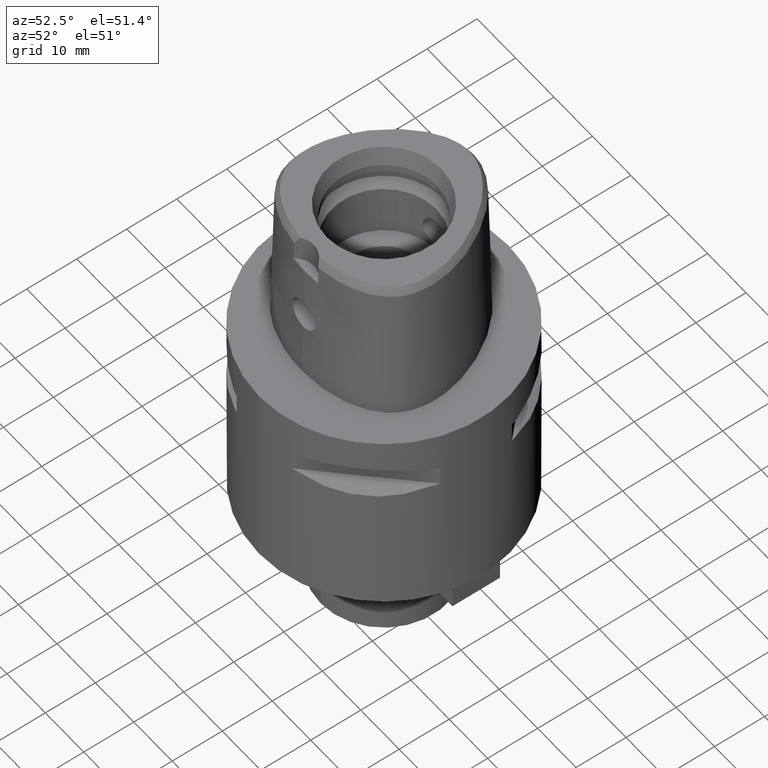
[diagram: clean part render]
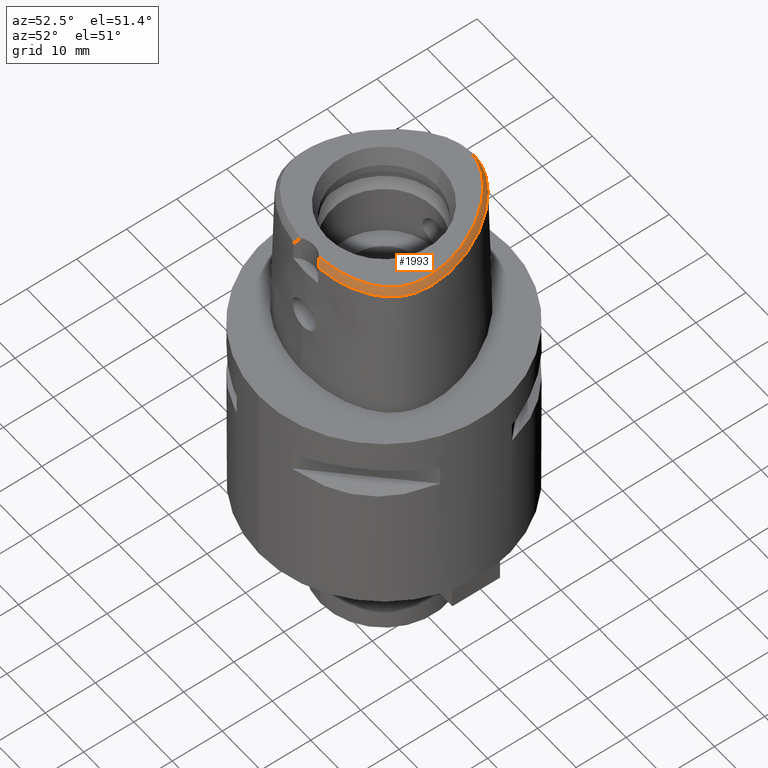
[diagram: same view with one face highlighted and labeled with its STEP entity id]
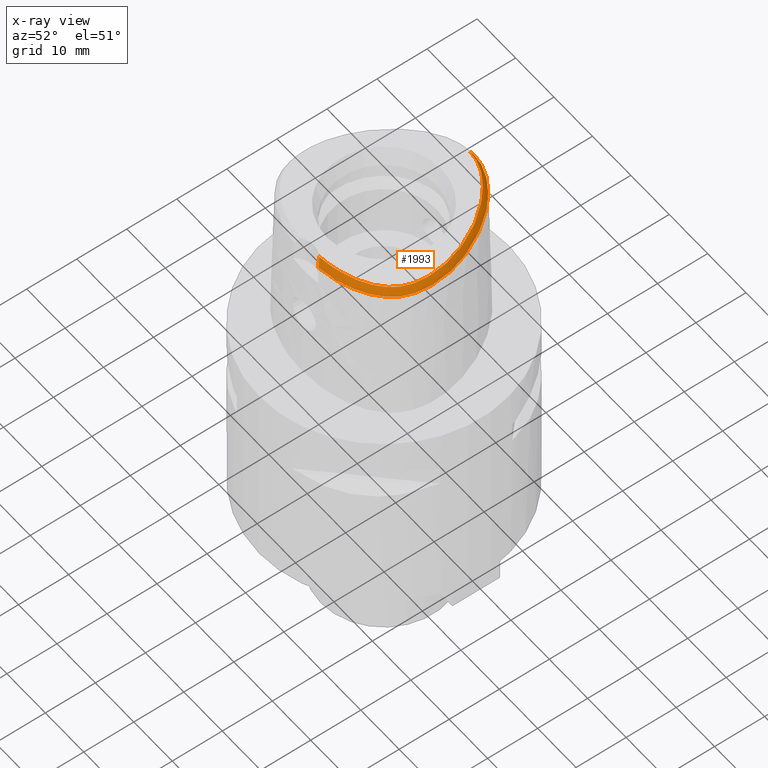
[diagram: x-ray of the same camera — body ghosted, the highlighted face saturated]
A machine part, auxiliary view. The second image highlights one B-rep face of the part: STEP entity #1993.
The next image is the same camera in x-ray: the body ghosted, the highlighted face saturated — about 0% of this face is hidden behind the body in this view.
In plain terms, the highlighted face is a freeform B-spline surface patch.
Its self-contained STEP definition (entity closure, byte-faithful):
#65=CARTESIAN_POINT('',(-6.301949014215E-11,1.715328888648E1,3.E1));
#70=CARTESIAN_POINT('',(-6.301949014215E-11,1.715328888648E1,3.E1));
#71=CARTESIAN_POINT('',(2.777616722458E-1,1.715328888649E1,3.E1));
#72=CARTESIAN_POINT('',(8.447675355650E-1,1.712428776359E1,3.E1));
#73=CARTESIAN_POINT('',(1.721830090813E0,1.699032819272E1,3.E1));
#74=CARTESIAN_POINT('',(2.649149900219E0,1.675524812591E1,3.E1));
#75=CARTESIAN_POINT('',(3.637697326575E0,1.640075765485E1,3.E1));
#76=CARTESIAN_POINT('',(4.639899341694E0,1.593367804020E1,3.E1));
#77=CARTESIAN_POINT('',(5.637738225532E0,1.536477833724E1,3.E1));
#78=CARTESIAN_POINT('',(6.658759245453E0,1.467349105190E1,3.E1));
#79=CARTESIAN_POINT('',(7.670769641147E0,1.387544615122E1,3.E1));
#80=CARTESIAN_POINT('',(8.707242898870E0,1.293802001656E1,3.E1));
#81=CARTESIAN_POINT('',(9.818019929471E0,1.178756300483E1,3.E1));
#82=CARTESIAN_POINT('',(1.101276470754E1,1.035200337220E1,3.E1));
#83=CARTESIAN_POINT('',(1.217253524367E1,8.714612523960E0,3.E1));
#84=CARTESIAN_POINT('',(1.321302822921E1,6.979993652523E0,3.E1));
#85=CARTESIAN_POINT('',(1.411946321340E1,5.172878816528E0,3.E1));
#86=CARTESIAN_POINT('',(1.485277441730E1,3.377028022542E0,3.E1));
#87=CARTESIAN_POINT('',(1.537798404075E1,1.749772317866E0,3.E1));
#88=CARTESIAN_POINT('',(1.573481367414E1,3.059587796540E-1,3.E1));
#89=CARTESIAN_POINT('',(1.596685641760E1,-1.010771755968E0,3.E1));
#90=CARTESIAN_POINT('',(1.609708199297E1,-2.250297357802E0,3.E1));
#91=CARTESIAN_POINT('',(1.613321208788E1,-3.430793850172E0,3.E1));
#92=CARTESIAN_POINT('',(1.607758281214E1,-4.559656771510E0,3.E1));
#93=CARTESIAN_POINT('',(1.592913025776E1,-5.633557178302E0,3.E1));
#94=CARTESIAN_POINT('',(1.569937609213E1,-6.605438150750E0,3.E1));
#95=CARTESIAN_POINT('',(1.540384993196E1,-7.471850498516E0,3.E1));
#96=CARTESIAN_POINT('',(1.504868552241E1,-8.252295695937E0,3.E1));
#97=CARTESIAN_POINT('',(1.463197838235E1,-8.966562556625E0,3.E1));
#98=CARTESIAN_POINT('',(1.412833422053E1,-9.659838555082E0,3.E1));
#99=CARTESIAN_POINT('',(1.351554946820E1,-1.034958936348E1,3.E1));
#100=CARTESIAN_POINT('',(1.278065377405E1,-1.103153151095E1,3.E1));
#101=CARTESIAN_POINT('',(1.191352938825E1,-1.169592966625E1,3.E1));
#102=CARTESIAN_POINT('',(1.095443669820E1,-1.230496705459E1,3.E1));
#103=CARTESIAN_POINT('',(9.910787999390E0,-1.285738391828E1,3.E1));
#104=CARTESIAN_POINT('',(8.760991237663E0,-1.336155250820E1,3.E1));
#105=CARTESIAN_POINT('',(7.498176769351E0,-1.381314477948E1,3.E1));
#106=CARTESIAN_POINT('',(6.060818885981E0,-1.422125337688E1,3.E1));
#107=CARTESIAN_POINT('',(4.351036718884E0,-1.457721747280E1,3.E1));
#108=CARTESIAN_POINT('',(3.079869816069E0,-1.474394533741E1,3.E1));
#109=CARTESIAN_POINT('',(2.406543924165E0,-1.480491841402E1,3.E1));
#130=CARTESIAN_POINT('',(3.168920890823E0,-1.555911073834E1,2.852071374673E1));
#131=CARTESIAN_POINT('',(3.092741976482E0,-1.546021032655E1,2.871180519878E1));
#132=CARTESIAN_POINT('',(2.933452387541E0,-1.527271420462E1,2.907630636305E1));
#133=CARTESIAN_POINT('',(2.681001770697E0,-1.502452457223E1,2.956388222784E1));
#134=CARTESIAN_POINT('',(2.499742243492E0,-1.487511563531E1,2.986020725569E1));
#135=CARTESIAN_POINT('',(2.406543924165E0,-1.480491841402E1,3.E1));
#140=CARTESIAN_POINT('',(-2.785048470627E-11,1.798202997910E1,
2.852071728569E1));
#141=CARTESIAN_POINT('',(2.935941968210E-1,1.798202997910E1,2.852071728569E1));
#142=CARTESIAN_POINT('',(8.796171229139E-1,1.795408702273E1,2.852060415113E1));
#143=CARTESIAN_POINT('',(1.829184189504E0,1.781518785758E1,2.852076558051E1));
#144=CARTESIAN_POINT('',(2.812452625656E0,1.757185041811E1,2.852071600259E1));
#145=CARTESIAN_POINT('',(3.840953727022E0,1.721318191179E1,2.852071676299E1));
#146=CARTESIAN_POINT('',(4.904083311850E0,1.673119820282E1,2.852072341774E1));
#147=CARTESIAN_POINT('',(5.980834384062E0,1.612813892605E1,2.852071577405E1));
#148=CARTESIAN_POINT('',(7.043175361553E0,1.541930512876E1,2.852072705112E1));
#149=CARTESIAN_POINT('',(8.109577711695E0,1.459040880097E1,2.852071914480E1));
#150=CARTESIAN_POINT('',(9.194007734920E0,1.362110970156E1,2.852071945283E1));
#151=CARTESIAN_POINT('',(1.034535899737E1,1.244017642194E1,2.852070832452E1));
#152=CARTESIAN_POINT('',(1.154012093893E1,1.102267813915E1,2.852071916918E1));
#153=CARTESIAN_POINT('',(1.271386959309E1,9.399003807796E0,2.852072757774E1));
#154=CARTESIAN_POINT('',(1.380064103219E1,7.630000430345E0,2.852068644894E1));
#155=CARTESIAN_POINT('',(1.474540598175E1,5.792550765778E0,2.852072726582E1));
#156=CARTESIAN_POINT('',(1.549794552729E1,4.015260998252E0,2.852070690748E1));
#157=CARTESIAN_POINT('',(1.606738788435E1,2.346436021666E0,2.852071984976E1));
#158=CARTESIAN_POINT('',(1.647553637416E1,8.031897834314E-1,2.852071502969E1));
#159=CARTESIAN_POINT('',(1.674716459447E1,-6.151536505890E-1,2.852071639985E1));
#160=CARTESIAN_POINT('',(1.690602915093E1,-1.942185861338E0,2.852072271876E1));
#161=CARTESIAN_POINT('',(1.696371599189E1,-3.217117921967E0,2.852071503295E1));
#162=CARTESIAN_POINT('',(1.692056262151E1,-4.436960410531E0,2.852071640093E1));
#163=CARTESIAN_POINT('',(1.678163740201E1,-5.574771102343E0,2.852072540388E1));
#164=CARTESIAN_POINT('',(1.655445846377E1,-6.625961530650E0,2.852071643925E1));
#165=CARTESIAN_POINT('',(1.625353024472E1,-7.573331601863E0,2.852071023680E1));
#166=CARTESIAN_POINT('',(1.588496980888E1,-8.435689500867E0,2.852072634144E1));
#167=CARTESIAN_POINT('',(1.545057542011E1,-9.225195743306E0,2.852073082699E1));
#168=CARTESIAN_POINT('',(1.493430223208E1,-9.975355792046E0,2.852069064864E1));
#169=CARTESIAN_POINT('',(1.431825928459E1,-1.070874242098E1,2.852072451793E1));
#170=CARTESIAN_POINT('',(1.357970418458E1,-1.143543197761E1,2.852072131217E1));
#171=CARTESIAN_POINT('',(1.271133720346E1,-1.214363567625E1,2.852072095479E1));
#172=CARTESIAN_POINT('',(1.172202467094E1,-1.281312288210E1,2.852071551875E1));
#173=CARTESIAN_POINT('',(1.063838208886E1,-1.342201063082E1,2.852072278178E1));
#174=CARTESIAN_POINT('',(9.470951823126E0,-1.396669023563E1,2.852070930739E1));
#175=CARTESIAN_POINT('',(8.179526351006E0,-1.446148756322E1,2.852072603061E1));
#176=CARTESIAN_POINT('',(6.725527713203E0,-1.490560760398E1,2.852072127528E1));
#177=CARTESIAN_POINT('',(5.083799249192E0,-1.528542001296E1,2.852070436786E1));
#178=CARTESIAN_POINT('',(3.829619308137E0,-1.548210353575E1,2.852069801596E1));
#179=CARTESIAN_POINT('',(3.168920890823E0,-1.555911073834E1,2.852071374673E1));
#238=DIRECTION('',(-2.074122626242E-11,-4.887572537803E-1,8.724198226067E-1));
#239=VECTOR('',#238,1.695608783729E0);
#240=CARTESIAN_POINT('',(-2.785048470627E-11,1.798202997910E1,
2.852071728569E1));
#241=LINE('',#240,#239);
#1542=CARTESIAN_POINT('',(2.406543924164E0,-1.480491841402E1,3.E1));
#1544=VERTEX_POINT('',#1542);
#1546=VERTEX_POINT('',#65);
#1551=VERTEX_POINT('',#130);
#1556=CARTESIAN_POINT('',(-2.785048470627E-11,1.798202997910E1,
2.852071728569E1));
#1557=VERTEX_POINT('',#1556);
#1760=CARTESIAN_POINT('',(1.922619923762E0,-1.477587451355E1,3.012174111738E1));
#1761=CARTESIAN_POINT('',(1.945798884457E0,-1.509676509240E1,2.954746708378E1));
#1762=CARTESIAN_POINT('',(1.968977845153E0,-1.541765567125E1,2.897319305018E1));
#1763=CARTESIAN_POINT('',(1.992156805848E0,-1.573854625010E1,2.839891901658E1));
#1764=CARTESIAN_POINT('',(2.082523857864E0,-1.476432189244E1,3.012174111583E1));
#1765=CARTESIAN_POINT('',(2.107648824485E0,-1.508507190514E1,2.954746708954E1));
#1766=CARTESIAN_POINT('',(2.132773791106E0,-1.540582191785E1,2.897319306326E1));
#1767=CARTESIAN_POINT('',(2.157898757727E0,-1.572657193055E1,2.839891903697E1));
#1768=CARTESIAN_POINT('',(2.374534776633E0,-1.474054735910E1,3.012174111658E1));
#1769=CARTESIAN_POINT('',(2.403227742010E0,-1.506100702091E1,2.954746708674E1));
#1770=CARTESIAN_POINT('',(2.431920707387E0,-1.538146668272E1,2.897319305689E1));
#1771=CARTESIAN_POINT('',(2.460613672764E0,-1.570192634453E1,2.839891902704E1));
#1772=CARTESIAN_POINT('',(3.122456928784E0,-1.466707632844E1,3.012174113773E1));
#1773=CARTESIAN_POINT('',(3.160374435066E0,-1.498662995740E1,2.954746700811E1));
#1774=CARTESIAN_POINT('',(3.198291941349E0,-1.530618358636E1,2.897319287848E1));
#1775=CARTESIAN_POINT('',(3.236209447631E0,-1.562573721533E1,2.839891874886E1));
#1776=CARTESIAN_POINT('',(4.148988159475E0,-1.453029063072E1,3.012174122740E1));
#1777=CARTESIAN_POINT('',(4.199857313619E0,-1.484812641510E1,2.954746667479E1));
#1778=CARTESIAN_POINT('',(4.250726467762E0,-1.516596219948E1,2.897319212218E1));
#1779=CARTESIAN_POINT('',(4.301595621906E0,-1.548379798386E1,2.839891756957E1));
#1780=CARTESIAN_POINT('',(5.432208516757E0,-1.428848668566E1,3.012174110024E1));
#1781=CARTESIAN_POINT('',(5.500163855392E0,-1.460311682837E1,2.954746714747E1));
#1782=CARTESIAN_POINT('',(5.568119194026E0,-1.491774697108E1,2.897319319469E1));
#1783=CARTESIAN_POINT('',(5.636074532660E0,-1.523237711379E1,2.839891924192E1));
#1784=CARTESIAN_POINT('',(6.640097574215E0,-1.399193642851E1,3.012174088830E1));
#1785=CARTESIAN_POINT('',(6.725172553910E0,-1.430238062559E1,2.954746793528E1));
#1786=CARTESIAN_POINT('',(6.810247533605E0,-1.461282482266E1,2.897319498225E1));
#1787=CARTESIAN_POINT('',(6.895322513300E0,-1.492326901974E1,2.839892202923E1));
#1788=CARTESIAN_POINT('',(7.762137813932E0,-1.364954181317E1,3.012174094330E1));
#1789=CARTESIAN_POINT('',(7.864398467453E0,-1.395476376663E1,2.954746773086E1));
#1790=CARTESIAN_POINT('',(7.966659120973E0,-1.425998572008E1,2.897319451842E1));
#1791=CARTESIAN_POINT('',(8.068919774494E0,-1.456520767353E1,2.839892130597E1));
#1792=CARTESIAN_POINT('',(8.790916541374E0,-1.327089918185E1,3.012174118472E1));
#1793=CARTESIAN_POINT('',(8.910397589264E0,-1.356980907282E1,2.954746683343E1));
#1794=CARTESIAN_POINT('',(9.029878637154E0,-1.386871896380E1,2.897319248214E1));
#1795=CARTESIAN_POINT('',(9.149359685044E0,-1.416762885477E1,2.839891813085E1));
#1796=CARTESIAN_POINT('',(9.726686322782E0,-1.286373122847E1,3.012174120387E1));
#1797=CARTESIAN_POINT('',(9.863401169485E0,-1.315517103003E1,2.954746676226E1));
#1798=CARTESIAN_POINT('',(1.000011601619E1,-1.344661083158E1,2.897319232066E1));
#1799=CARTESIAN_POINT('',(1.013683086289E1,-1.373805063314E1,2.839891787905E1));
#1800=CARTESIAN_POINT('',(1.057239211582E1,-1.243475188664E1,3.012174119071E1));
#1801=CARTESIAN_POINT('',(1.072623505974E1,-1.271753480595E1,2.954746681118E1));
#1802=CARTESIAN_POINT('',(1.088007800366E1,-1.300031772526E1,2.897319243165E1));
#1803=CARTESIAN_POINT('',(1.103392094758E1,-1.328310064458E1,2.839891805212E1));
#1804=CARTESIAN_POINT('',(1.133144277109E1,-1.199017472447E1,3.012174113794E1));
#1805=CARTESIAN_POINT('',(1.150227677881E1,-1.226304029724E1,2.954746700735E1));
#1806=CARTESIAN_POINT('',(1.167311078653E1,-1.253590587E1,2.897319287677E1));
#1807=CARTESIAN_POINT('',(1.184394479425E1,-1.280877144277E1,2.839891874619E1));
#1808=CARTESIAN_POINT('',(1.200952550737E1,-1.153455164383E1,3.012174112433E1));
#1809=CARTESIAN_POINT('',(1.219706463926E1,-1.179622879679E1,2.954746705794E1));
#1810=CARTESIAN_POINT('',(1.238460377116E1,-1.205790594975E1,2.897319299155E1));
#1811=CARTESIAN_POINT('',(1.257214290305E1,-1.231958310271E1,2.839891892515E1));
#1812=CARTESIAN_POINT('',(1.261192484112E1,-1.107201181488E1,3.012174119599E1));
#1813=CARTESIAN_POINT('',(1.281580348567E1,-1.132118186982E1,2.954746679156E1));
#1814=CARTESIAN_POINT('',(1.301968213022E1,-1.157035192476E1,2.897319238714E1));
#1815=CARTESIAN_POINT('',(1.322356077476E1,-1.181952197970E1,2.839891798271E1));
#1816=CARTESIAN_POINT('',(1.314518749696E1,-1.060489843950E1,3.012174119538E1));
#1817=CARTESIAN_POINT('',(1.336489026618E1,-1.084024648526E1,2.954746679383E1));
#1818=CARTESIAN_POINT('',(1.358459303539E1,-1.107559453101E1,2.897319239227E1));
#1819=CARTESIAN_POINT('',(1.380429580461E1,-1.131094257676E1,2.839891799072E1));
#1820=CARTESIAN_POINT('',(1.361580360178E1,-1.013446487295E1,3.012174119003E1));
#1821=CARTESIAN_POINT('',(1.385067326121E1,-1.035469198564E1,2.954746681369E1));
#1822=CARTESIAN_POINT('',(1.408554292065E1,-1.057491909833E1,2.897319243735E1));
#1823=CARTESIAN_POINT('',(1.432041258009E1,-1.079514621102E1,2.839891806101E1));
#1824=CARTESIAN_POINT('',(1.402954795332E1,-9.661379466887E0,3.012174114544E1));
#1825=CARTESIAN_POINT('',(1.427878945614E1,-9.865211676078E0,2.954746697944E1));
#1826=CARTESIAN_POINT('',(1.452803095895E1,-1.006904388527E1,2.897319281344E1));
#1827=CARTESIAN_POINT('',(1.477727246176E1,-1.027287609446E1,2.839891864744E1));
#1828=CARTESIAN_POINT('',(1.439199375952E1,-9.184991783261E0,3.012174119423E1));
#1829=CARTESIAN_POINT('',(1.465463627540E1,-9.371247673696E0,2.954746679808E1));
#1830=CARTESIAN_POINT('',(1.491727879128E1,-9.557503564130E0,2.897319240192E1));
#1831=CARTESIAN_POINT('',(1.517992130716E1,-9.743759454565E0,2.839891800577E1));
#1832=CARTESIAN_POINT('',(1.470621738726E1,-8.707039397526E0,3.012174117498E1));
#1833=CARTESIAN_POINT('',(1.498117817021E1,-8.874598123968E0,2.954746686966E1));
#1834=CARTESIAN_POINT('',(1.525613895315E1,-9.042156850410E0,2.897319256434E1));
#1835=CARTESIAN_POINT('',(1.553109973610E1,-9.209715576851E0,2.839891825902E1));
#1836=CARTESIAN_POINT('',(1.498193613799E1,-8.216411747884E0,3.012174121179E1));
#1837=CARTESIAN_POINT('',(1.526805176005E1,-8.364113731680E0,2.954746673282E1));
#1838=CARTESIAN_POINT('',(1.555416738210E1,-8.511815715476E0,2.897319225385E1));
#1839=CARTESIAN_POINT('',(1.584028300415E1,-8.659517699272E0,2.839891777487E1));
#1840=CARTESIAN_POINT('',(1.523056320464E1,-7.691879208955E0,3.012174115671E1));
#1841=CARTESIAN_POINT('',(1.552619110978E1,-7.819452038372E0,2.954746693758E1));
#1842=CARTESIAN_POINT('',(1.582181901492E1,-7.947024867789E0,2.897319271845E1));
#1843=CARTESIAN_POINT('',(1.611744692006E1,-8.074597697207E0,2.839891849932E1));
#1844=CARTESIAN_POINT('',(1.545265004614E1,-7.125936645347E0,3.012174116495E1));
#1845=CARTESIAN_POINT('',(1.575630109772E1,-7.233004705617E0,2.954746690694E1));
#1846=CARTESIAN_POINT('',(1.605995214930E1,-7.340072765887E0,2.897319264893E1));
#1847=CARTESIAN_POINT('',(1.636360320088E1,-7.447140826156E0,2.839891839092E1));
#1848=CARTESIAN_POINT('',(1.564553356258E1,-6.515717760505E0,3.012174119184E1));
#1849=CARTESIAN_POINT('',(1.595569250202E1,-6.602107587281E0,2.954746680699E1));
#1850=CARTESIAN_POINT('',(1.626585144145E1,-6.688497414057E0,2.897319242214E1));
#1851=CARTESIAN_POINT('',(1.657601038088E1,-6.774887240833E0,2.839891803728E1));
#1852=CARTESIAN_POINT('',(1.580667637634E1,-5.855862942821E0,3.012174119959E1));
#1853=CARTESIAN_POINT('',(1.612185685036E1,-5.921570139143E0,2.954746677817E1));
#1854=CARTESIAN_POINT('',(1.643703732438E1,-5.987277335464E0,2.897319235675E1));
#1855=CARTESIAN_POINT('',(1.675221779841E1,-6.052984531786E0,2.839891793533E1));
#1856=CARTESIAN_POINT('',(1.593225209255E1,-5.141901377309E0,3.012174117848E1));
#1857=CARTESIAN_POINT('',(1.625101866777E1,-5.187045513868E0,2.954746685661E1));
#1858=CARTESIAN_POINT('',(1.656978524300E1,-5.232189650428E0,2.897319253473E1));
#1859=CARTESIAN_POINT('',(1.688855181823E1,-5.277333786988E0,2.839891821285E1));
#1860=CARTESIAN_POINT('',(1.601765063228E1,-4.368655085549E0,3.012174110984E1));
#1861=CARTESIAN_POINT('',(1.633862777601E1,-4.393503010359E0,2.954746711178E1));
#1862=CARTESIAN_POINT('',(1.665960491974E1,-4.418350935169E0,2.897319311372E1));
#1863=CARTESIAN_POINT('',(1.698058206348E1,-4.443198859978E0,2.839891911567E1));
#1864=CARTESIAN_POINT('',(1.605723189701E1,-3.532420663148E0,3.012174116682E1));
#1865=CARTESIAN_POINT('',(1.637912284859E1,-3.537332007376E0,2.954746690001E1));
#1866=CARTESIAN_POINT('',(1.670101380018E1,-3.542243351604E0,2.897319263320E1));
#1867=CARTESIAN_POINT('',(1.702290475176E1,-3.547154695832E0,2.839891836639E1));
#1868=CARTESIAN_POINT('',(1.604455650853E1,-2.630590208580E0,3.012174118679E1));
#1869=CARTESIAN_POINT('',(1.636614402234E1,-2.615985602021E0,2.954746682575E1));
#1870=CARTESIAN_POINT('',(1.668773153615E1,-2.601380995462E0,2.897319246472E1));
#1871=CARTESIAN_POINT('',(1.700931904996E1,-2.586776388903E0,2.839891810369E1));
#1872=CARTESIAN_POINT('',(1.597271547218E1,-1.661235163345E0,3.012174122620E1));
#1873=CARTESIAN_POINT('',(1.629286831352E1,-1.627641913159E0,2.954746667926E1));
#1874=CARTESIAN_POINT('',(1.661302115485E1,-1.594048662973E0,2.897319213232E1));
#1875=CARTESIAN_POINT('',(1.693317399618E1,-1.560455412787E0,2.839891758538E1));
#1876=CARTESIAN_POINT('',(1.583451065235E1,-6.249592603684E-1,
3.012174110400E1));
#1877=CARTESIAN_POINT('',(1.615217307187E1,-5.728848330672E-1,
2.954746713346E1));
#1878=CARTESIAN_POINT('',(1.646983549139E1,-5.208104057659E-1,
2.897319316292E1));
#1879=CARTESIAN_POINT('',(1.678749791091E1,-4.687359784646E-1,
2.839891919237E1));
#1880=CARTESIAN_POINT('',(1.562268302237E1,4.771112378683E-1,3.012174088735E1));
#1881=CARTESIAN_POINT('',(1.593688610423E1,5.470578685490E-1,2.954746793884E1));
#1882=CARTESIAN_POINT('',(1.625108918609E1,6.170044992297E-1,2.897319499033E1));
#1883=CARTESIAN_POINT('',(1.656529226795E1,6.869511299105E-1,2.839892204182E1));
#1884=CARTESIAN_POINT('',(1.533099804578E1,1.638692341982E0,3.012174092122E1));
#1885=CARTESIAN_POINT('',(1.564083614901E1,1.725941963602E0,2.954746781290E1));
#1886=CARTESIAN_POINT('',(1.595067425225E1,1.813191585223E0,2.897319470458E1));
#1887=CARTESIAN_POINT('',(1.626051235548E1,1.900441206844E0,2.839892159626E1));
#1888=CARTESIAN_POINT('',(1.495575246717E1,2.847026876824E0,3.012174118443E1));
#1889=CARTESIAN_POINT('',(1.526037649970E1,2.951013414669E0,2.954746683454E1));
#1890=CARTESIAN_POINT('',(1.556500053223E1,3.054999952514E0,2.897319248464E1));
#1891=CARTESIAN_POINT('',(1.586962456476E1,3.158986490359E0,2.839891813475E1));
#1892=CARTESIAN_POINT('',(1.449498439244E1,4.088660816601E0,3.012174119806E1));
#1893=CARTESIAN_POINT('',(1.479357809657E1,4.208861774309E0,2.954746678388E1));
#1894=CARTESIAN_POINT('',(1.509217180069E1,4.329062732017E0,2.897319236970E1));
#1895=CARTESIAN_POINT('',(1.539076550482E1,4.449263689725E0,2.839891795552E1));
#1896=CARTESIAN_POINT('',(1.394903457789E1,5.348581307602E0,3.012174111001E1));
#1897=CARTESIAN_POINT('',(1.424082693980E1,5.484454602439E0,2.954746711113E1));
#1898=CARTESIAN_POINT('',(1.453261930171E1,5.620327897275E0,2.897319311224E1));
#1899=CARTESIAN_POINT('',(1.482441166362E1,5.756201192112E0,2.839891911335E1));
#1900=CARTESIAN_POINT('',(1.332349499792E1,6.604892952933E0,3.012174115727E1));
#1901=CARTESIAN_POINT('',(1.360772377458E1,6.755948713042E0,2.954746693550E1));
#1902=CARTESIAN_POINT('',(1.389195255124E1,6.907004473151E0,2.897319271373E1));
#1903=CARTESIAN_POINT('',(1.417618132789E1,7.058060233260E0,2.839891849197E1));
#1904=CARTESIAN_POINT('',(1.262742219827E1,7.835359323084E0,3.012174118401E1));
#1905=CARTESIAN_POINT('',(1.290329983872E1,8.001176233582E0,2.954746683609E1));
#1906=CARTESIAN_POINT('',(1.317917747917E1,8.166993144081E0,2.897319248817E1));
#1907=CARTESIAN_POINT('',(1.345505511962E1,8.332810054579E0,2.839891814024E1));
#1908=CARTESIAN_POINT('',(1.187012099022E1,9.023037954805E0,3.012174108973E1));
#1909=CARTESIAN_POINT('',(1.213689198997E1,9.203141408088E0,2.954746718654E1));
#1910=CARTESIAN_POINT('',(1.240366298973E1,9.383244861372E0,2.897319328335E1));
#1911=CARTESIAN_POINT('',(1.267043398949E1,9.563348314656E0,2.839891938016E1));
#1912=CARTESIAN_POINT('',(1.106423056899E1,1.015045826313E1,3.012174112910E1));
#1913=CARTESIAN_POINT('',(1.132109878823E1,1.034442822062E1,2.954746704016E1));
#1914=CARTESIAN_POINT('',(1.157796700747E1,1.053839817812E1,2.897319295122E1));
#1915=CARTESIAN_POINT('',(1.183483522671E1,1.073236813562E1,2.839891886227E1));
#1916=CARTESIAN_POINT('',(1.022674089077E1,1.119899283689E1,3.012174122366E1));
#1917=CARTESIAN_POINT('',(1.047287810259E1,1.140641630204E1,2.954746668867E1));
#1918=CARTESIAN_POINT('',(1.071901531441E1,1.161383976720E1,2.897319215367E1));
#1919=CARTESIAN_POINT('',(1.096515252623E1,1.182126323235E1,2.839891761868E1));
#1920=CARTESIAN_POINT('',(9.371152349710E0,1.215900952668E1,3.012174104963E1));
#1921=CARTESIAN_POINT('',(9.605689218135E0,1.237947160774E1,2.954746733563E1));
#1922=CARTESIAN_POINT('',(9.840226086559E0,1.259993368880E1,2.897319362163E1));
#1923=CARTESIAN_POINT('',(1.007476295498E1,1.282039576986E1,2.839891990763E1));
#1924=CARTESIAN_POINT('',(8.510045859706E0,1.302474760103E1,3.012174099E1));
#1925=CARTESIAN_POINT('',(8.732090663114E0,1.325779435822E1,2.954746755725E1));
#1926=CARTESIAN_POINT('',(8.954135466523E0,1.349084111540E1,2.897319412450E1));
#1927=CARTESIAN_POINT('',(9.176180269931E0,1.372388787259E1,2.839892069175E1));
#1928=CARTESIAN_POINT('',(7.656774425094E0,1.379187548788E1,3.012174114362E1));
#1929=CARTESIAN_POINT('',(7.865388836702E0,1.403702749726E1,2.954746698625E1));
#1930=CARTESIAN_POINT('',(8.074003248310E0,1.428217950665E1,2.897319282888E1));
#1931=CARTESIAN_POINT('',(8.282617659918E0,1.452733151603E1,2.839891867151E1));
#1932=CARTESIAN_POINT('',(6.822060748064E0,1.446055476089E1,3.012174123132E1));
#1933=CARTESIAN_POINT('',(7.016249664158E0,1.471729455670E1,2.954746666022E1));
#1934=CARTESIAN_POINT('',(7.210438580252E0,1.497403435251E1,2.897319208913E1));
#1935=CARTESIAN_POINT('',(7.404627496346E0,1.523077414832E1,2.839891751803E1));
#1936=CARTESIAN_POINT('',(6.010115085406E0,1.503681904773E1,3.012174089607E1));
#1937=CARTESIAN_POINT('',(6.188898542157E0,1.530452465394E1,2.954746790641E1));
#1938=CARTESIAN_POINT('',(6.367681998907E0,1.557223026014E1,2.897319491675E1));
#1939=CARTESIAN_POINT('',(6.546465455658E0,1.583993586635E1,2.839892192709E1));
#1940=CARTESIAN_POINT('',(5.224224894730E0,1.552710809540E1,3.012174070514E1));
#1941=CARTESIAN_POINT('',(5.386612323346E0,1.580507565400E1,2.954746861612E1));
#1942=CARTESIAN_POINT('',(5.548999751963E0,1.608304321261E1,2.897319652709E1));
#1943=CARTESIAN_POINT('',(5.711387180579E0,1.636101077121E1,2.839892443807E1));
#1944=CARTESIAN_POINT('',(4.468814575500E0,1.593676204595E1,3.012174080028E1));
#1945=CARTESIAN_POINT('',(4.613809845314E0,1.622419545934E1,2.954746826246E1));
#1946=CARTESIAN_POINT('',(4.758805115129E0,1.651162887273E1,2.897319572465E1));
#1947=CARTESIAN_POINT('',(4.903800384943E0,1.679906228613E1,2.839892318683E1));
#1948=CARTESIAN_POINT('',(3.746060371179E0,1.627233755921E1,3.012174111332E1));
#1949=CARTESIAN_POINT('',(3.872694947990E0,1.656833062817E1,2.954746709885E1));
#1950=CARTESIAN_POINT('',(3.999329524802E0,1.686432369713E1,2.897319308438E1));
#1951=CARTESIAN_POINT('',(4.125964101613E0,1.716031676608E1,2.839891906991E1));
#1952=CARTESIAN_POINT('',(3.055517892459E0,1.654097771630E1,3.012174126107E1));
#1953=CARTESIAN_POINT('',(3.162823185836E0,1.684452345892E1,2.954746654964E1));
#1954=CARTESIAN_POINT('',(3.270128479214E0,1.714806920155E1,2.897319183822E1));
#1955=CARTESIAN_POINT('',(3.377433772591E0,1.745161494417E1,2.839891712680E1));
#1956=CARTESIAN_POINT('',(2.394336338935E0,1.674988150751E1,3.012174119899E1));
#1957=CARTESIAN_POINT('',(2.481485113777E0,1.705982485442E1,2.954746678041E1));
#1958=CARTESIAN_POINT('',(2.568633888618E0,1.736976820133E1,2.897319236184E1));
#1959=CARTESIAN_POINT('',(2.655782663459E0,1.767971154824E1,2.839891794326E1));
#1960=CARTESIAN_POINT('',(1.760087423037E0,1.690490234209E1,3.012174116021E1));
#1961=CARTESIAN_POINT('',(1.826316213310E0,1.721998856394E1,2.954746692456E1));
#1962=CARTESIAN_POINT('',(1.892545003583E0,1.753507478580E1,2.897319268892E1));
#1963=CARTESIAN_POINT('',(1.958773793856E0,1.785016100765E1,2.839891845327E1));
#1964=CARTESIAN_POINT('',(1.152017673654E0,1.701083412456E1,3.012174120571E1));
#1965=CARTESIAN_POINT('',(1.196663629343E0,1.732970192410E1,2.954746675545E1));
#1966=CARTESIAN_POINT('',(1.241309585032E0,1.764856972364E1,2.897319230519E1));
#1967=CARTESIAN_POINT('',(1.285955540721E0,1.796743752318E1,2.839891785493E1));
#1968=CARTESIAN_POINT('',(5.644093987933E-1,1.707196981238E1,3.012174120105E1));
#1969=CARTESIAN_POINT('',(5.869687776951E-1,1.739316591712E1,2.954746677275E1));
#1970=CARTESIAN_POINT('',(6.095281565969E-1,1.771436202185E1,2.897319234445E1));
#1971=CARTESIAN_POINT('',(6.320875354987E-1,1.803555812659E1,2.839891791615E1));
#1972=CARTESIAN_POINT('',(3.837125433839E-2,1.709038108766E1,3.012174116420E1));
#1973=CARTESIAN_POINT('',(3.978565855640E-2,1.741232193829E1,2.954746690973E1));
#1974=CARTESIAN_POINT('',(4.120006277441E-2,1.773426278891E1,2.897319265526E1));
#1975=CARTESIAN_POINT('',(4.261446699242E-2,1.805620363954E1,2.839891840079E1));
#1976=CARTESIAN_POINT('',(-3.078158300380E-1,1.708080957996E1,
3.012174118335E1));
#1977=CARTESIAN_POINT('',(-3.198988358018E-1,1.740236325800E1,
2.954746683851E1));
#1978=CARTESIAN_POINT('',(-3.319818415656E-1,1.772391693605E1,
2.897319249367E1));
#1979=CARTESIAN_POINT('',(-3.440648473294E-1,1.804547061409E1,
2.839891814883E1));
#1980=CARTESIAN_POINT('',(-4.674239338919E-1,1.707244304465E1,
3.012174121043E1));
#1981=CARTESIAN_POINT('',(-4.854504425871E-1,1.739364559694E1,
2.954746673787E1));
#1982=CARTESIAN_POINT('',(-5.034769512823E-1,1.771484814924E1,
2.897319226531E1));
#1983=CARTESIAN_POINT('',(-5.215034599775E-1,1.803605070153E1,
2.839891779275E1));
#1984=B_SPLINE_SURFACE_WITH_KNOTS('',3,3,((#1760,#1761,#1762,#1763),(#1764,
#1765,#1766,#1767),(#1768,#1769,#1770,#1771),(#1772,#1773,#1774,#1775),(#1776,
#1777,#1778,#1779),(#1780,#1781,#1782,#1783),(#1784,#1785,#1786,#1787),(#1788,
#1789,#1790,#1791),(#1792,#1793,#1794,#1795),(#1796,#1797,#1798,#1799),(#1800,
#1801,#1802,#1803),(#1804,#1805,#1806,#1807),(#1808,#1809,#1810,#1811),(#1812,
#1813,#1814,#1815),(#1816,#1817,#1818,#1819),(#1820,#1821,#1822,#1823),(#1824,
#1825,#1826,#1827),(#1828,#1829,#1830,#1831),(#1832,#1833,#1834,#1835),(#1836,
#1837,#1838,#1839),(#1840,#1841,#1842,#1843),(#1844,#1845,#1846,#1847),(#1848,
#1849,#1850,#1851),(#1852,#1853,#1854,#1855),(#1856,#1857,#1858,#1859),(#1860,
#1861,#1862,#1863),(#1864,#1865,#1866,#1867),(#1868,#1869,#1870,#1871),(#1872,
#1873,#1874,#1875),(#1876,#1877,#1878,#1879),(#1880,#1881,#1882,#1883),(#1884,
#1885,#1886,#1887),(#1888,#1889,#1890,#1891),(#1892,#1893,#1894,#1895),(#1896,
#1897,#1898,#1899),(#1900,#1901,#1902,#1903),(#1904,#1905,#1906,#1907),(#1908,
#1909,#1910,#1911),(#1912,#1913,#1914,#1915),(#1916,#1917,#1918,#1919),(#1920,
#1921,#1922,#1923),(#1924,#1925,#1926,#1927),(#1928,#1929,#1930,#1931),(#1932,
#1933,#1934,#1935),(#1936,#1937,#1938,#1939),(#1940,#1941,#1942,#1943),(#1944,
#1945,#1946,#1947),(#1948,#1949,#1950,#1951),(#1952,#1953,#1954,#1955),(#1956,
#1957,#1958,#1959),(#1960,#1961,#1962,#1963),(#1964,#1965,#1966,#1967),(#1968,
#1969,#1970,#1971),(#1972,#1973,#1974,#1975),(#1976,#1977,#1978,#1979),(#1980,
#1981,#1982,#1983)),.UNSPECIFIED.,.F.,.F.,.F.,(4,1,1,1,1,1,1,1,1,1,1,1,1,1,1,1,
1,1,1,1,1,1,1,1,1,1,1,1,1,1,1,1,1,1,1,1,1,1,1,1,1,1,1,1,1,1,1,1,1,1,1,1,1,4),(4,
4),(-6.850724150829E-3,0.E0,5.706470806014E-3,2.559234138984E-2,
4.547821197368E-2,6.536408255751E-2,8.524995314132E-2,1.051358237252E-1,
1.250216943090E-1,1.449075648928E-1,1.647934354767E-1,1.846793060605E-1,
2.045651766443E-1,2.244510472281E-1,2.443369178120E-1,2.642227883958E-1,
2.841086589796E-1,3.039945295635E-1,3.238804001472E-1,3.437662707311E-1,
3.636521413150E-1,3.835380118988E-1,4.034238824826E-1,4.233097530664E-1,
4.431956236503E-1,4.630814942341E-1,4.829673648179E-1,5.028532354018E-1,
5.227391059856E-1,5.426249765694E-1,5.625108471533E-1,5.823967177370E-1,
6.022825883209E-1,6.221684589048E-1,6.420543294886E-1,6.619402000724E-1,
6.818260706562E-1,7.017119412401E-1,7.215978118239E-1,7.414836824077E-1,
7.613695529916E-1,7.812554235753E-1,8.011412941592E-1,8.210271647431E-1,
8.409130353268E-1,8.607989059107E-1,8.806847764945E-1,9.005706470784E-1,
9.204565176622E-1,9.403423882460E-1,9.602282588299E-1,9.801141294136E-1,1.E0,
1.016057694065E0),(-5.990092901644E-2,1.059933039588E0),.UNSPECIFIED.);
#1985=ORIENTED_EDGE('',*,*,#1747,.T.);
#1986=ORIENTED_EDGE('',*,*,#1730,.F.);
#1988=ORIENTED_EDGE('',*,*,#1987,.F.);
#1990=ORIENTED_EDGE('',*,*,#1989,.T.);
#1991=EDGE_LOOP('',(#1985,#1986,#1988,#1990));
#1992=FACE_OUTER_BOUND('',#1991,.F.);
#110=B_SPLINE_CURVE_WITH_KNOTS('',3,(#70,#71,#72,#73,#74,#75,#76,#77,#78,#79,
#80,#81,#82,#83,#84,#85,#86,#87,#88,#89,#90,#91,#92,#93,#94,#95,#96,#97,#98,#99,
#100,#101,#102,#103,#104,#105,#106,#107,#108,#109),.UNSPECIFIED.,.F.,.F.,(4,1,1,
1,1,1,1,1,1,1,1,1,1,1,1,1,1,1,1,1,1,1,1,1,1,1,1,1,1,1,1,1,1,1,1,1,1,4),(0.E0,
2.702702702703E-2,5.405405405405E-2,8.108108108108E-2,1.081081081081E-1,
1.351351351351E-1,1.621621621622E-1,1.891891891892E-1,2.162162162162E-1,
2.432432432432E-1,2.702702702703E-1,2.972972972973E-1,3.243243243243E-1,
3.513513513514E-1,3.783783783784E-1,4.054054054054E-1,4.324324324324E-1,
4.594594594595E-1,4.864864864865E-1,5.135135135135E-1,5.405405405405E-1,
5.675675675676E-1,5.945945945946E-1,6.216216216216E-1,6.486486486486E-1,
6.756756756757E-1,7.027027027027E-1,7.297297297297E-1,7.567567567568E-1,
7.837837837838E-1,8.108108108108E-1,8.378378378378E-1,8.648648648649E-1,
8.918918918919E-1,9.189189189189E-1,9.459459459459E-1,9.729729729730E-1,1.E0),
.UNSPECIFIED.);
#136=B_SPLINE_CURVE_WITH_KNOTS('',3,(#130,#131,#132,#133,#134,#135),
.UNSPECIFIED.,.F.,.F.,(4,1,1,4),(0.E0,3.333333333333E-1,6.666666666667E-1,1.E0),
.UNSPECIFIED.);
#180=B_SPLINE_CURVE_WITH_KNOTS('',3,(#140,#141,#142,#143,#144,#145,#146,#147,
#148,#149,#150,#151,#152,#153,#154,#155,#156,#157,#158,#159,#160,#161,#162,#163,
#164,#165,#166,#167,#168,#169,#170,#171,#172,#173,#174,#175,#176,#177,#178,
#179),.UNSPECIFIED.,.F.,.F.,(4,1,1,1,1,1,1,1,1,1,1,1,1,1,1,1,1,1,1,1,1,1,1,1,1,
1,1,1,1,1,1,1,1,1,1,1,1,4),(0.E0,2.702702702703E-2,5.405405405405E-2,
8.108108108108E-2,1.081081081081E-1,1.351351351351E-1,1.621621621622E-1,
1.891891891892E-1,2.162162162162E-1,2.432432432432E-1,2.702702702703E-1,
2.972972972973E-1,3.243243243243E-1,3.513513513514E-1,3.783783783784E-1,
4.054054054054E-1,4.324324324324E-1,4.594594594595E-1,4.864864864865E-1,
5.135135135135E-1,5.405405405405E-1,5.675675675676E-1,5.945945945946E-1,
6.216216216216E-1,6.486486486486E-1,6.756756756757E-1,7.027027027027E-1,
7.297297297297E-1,7.567567567568E-1,7.837837837838E-1,8.108108108108E-1,
8.378378378378E-1,8.648648648649E-1,8.918918918919E-1,9.189189189189E-1,
9.459459459459E-1,9.729729729730E-1,1.E0),.UNSPECIFIED.);
#1730=EDGE_CURVE('',#1546,#1544,#110,.T.);
#1747=EDGE_CURVE('',#1551,#1544,#136,.T.);
#1987=EDGE_CURVE('',#1557,#1546,#241,.T.);
#1989=EDGE_CURVE('',#1557,#1551,#180,.T.);
#1993=ADVANCED_FACE('',(#1992),#1984,.F.);